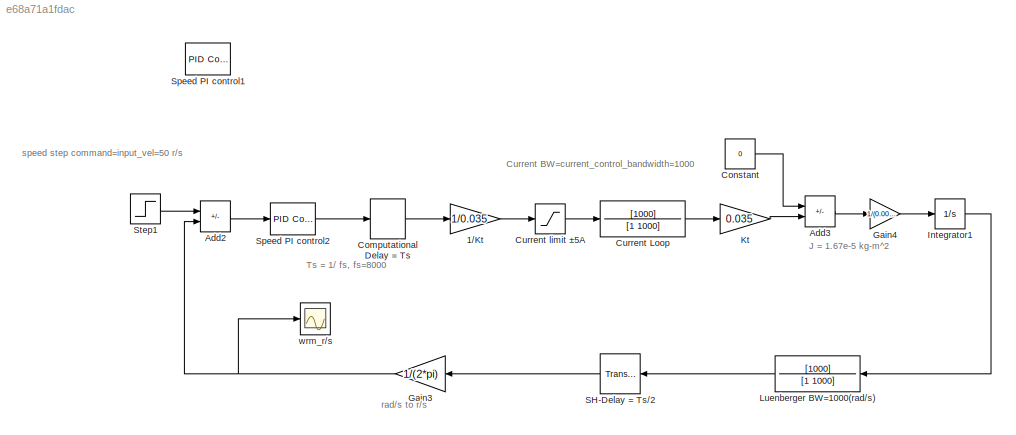
MODEL slx_e68a71a1fdac
KIND model
CONFIG AbsTol = auto
CONFIG EnableMultiTasking = off
CONFIG FixedStep = 1e-5
CONFIG MaxStep = auto
CONFIG MinStep = auto
CONFIG RelTol = 1e-3
CONFIG SampleTimeConstraint = Unconstrained
CONFIG SolverName = VariableStepAuto
CONFIG StartTime = 0.0
CONFIG StopTime = 5
BLOCK [Gain] 1//Kt
  Gain = 1/0.035
BLOCK [Sum] Add2
  IconShape = rectangular
  Inputs = +-
BLOCK [Sum] Add3
  IconShape = rectangular
  Inputs = -+
BLOCK [TransportDelay] Computational Delay = Ts
  DelayTime = 1/8000
BLOCK [Constant] Constant
  Value = 0
BLOCK [TransferFcn] Current Loop
  Denominator = [1 1000]
  Numerator = [1000]
BLOCK [Saturate] Current limit ±5A
  LowerLimit = -5
  UpperLimit = 5
BLOCK [Gain] Gain3
  Gain = 1/(2*pi)
  NameLocation = top
BLOCK [Gain] Gain4
  Gain = 1/(0.0000167)
BLOCK [Integrator] Integrator1
BLOCK [Gain] Kt
  Gain = 0.035
BLOCK [TransferFcn] Luenberger BW=1000(rad//s)
  Denominator = [1 1000]
  NameLocation = top
  Numerator = [1000]
BLOCK [TransportDelay] SH-Delay = Ts//2
  DelayTime = (1/8000)/2
  NameLocation = top
BLOCK [Reference] Speed PI control1  REF=slpidlib/PID Controller
  LibrarySourceBlock = simulink/Continuous/PID Controller
  NameLocation = top
  SourceBlock = slpidlib/PID Controller
  SourceType = PID 1dof
BLOCK [Reference] Speed PI control2  REF=slpidlib/PID Controller
  LibrarySourceBlock = simulink/Continuous/PID Controller
  NameLocation = top
  SourceBlock = slpidlib/PID Controller
  SourceType = PID 1dof
BLOCK [Step] Step1
  After = 50
  SampleTime = 0
  Time = 1.5
BLOCK [Scope] wrm_r//s
  Floating = off
  NumInputPorts = 1
  ScopeSpecificationString = Simulink.scopes.TimeScopeBlockCfg('CurrentConfiguration', extmgr.ConfigurationSet(extmgr.Configuration('Core','General UI',true,'FigureColor',[1 1 1]),extmgr.Configuration('Core','Source UI',true),extmgr.Configuration('Sources','WiredSimulink',true,'DataLoggingVariableName','ScopeData1'),extmgr.Configuration('Visuals','Time Domain',true,'SerializedDisplays',{struct('MinYLimReal','-9.37197','MaxYLi...<+1561ch>
ANNOTATION (root): Current BW=current_control_bandwidth=1000
ANNOTATION (root): J = 1.67e-5 kg-m^2
ANNOTATION (root): Ts = 1/ fs, fs=8000
ANNOTATION (root): rad/s to r/s
ANNOTATION (root): speed step command=input_vel=50 r/s
LINE 1//Kt:1 -> Current limit ±5A:1
LINE Add2:1 -> Speed PI control2:1
LINE Add3:1 -> Gain4:1
LINE Computational Delay = Ts:1 -> 1//Kt:1
LINE Constant:1 -> Add3:1
LINE Current Loop:1 -> Kt:1
LINE Current limit ±5A:1 -> Current Loop:1
NET Gain3:1 -> Add2:2, wrm_r//s:1
LINE Gain4:1 -> Integrator1:1
LINE Integrator1:1 -> Luenberger BW=1000(rad//s):1
LINE Kt:1 -> Add3:2
LINE Luenberger BW=1000(rad//s):1 -> SH-Delay = Ts//2:1
LINE SH-Delay = Ts//2:1 -> Gain3:1
LINE Speed PI control2:1 -> Computational Delay = Ts:1
LINE Step1:1 -> Add2:1
note: NET lines group one-source signal fan-out (src -> all destinations, sorted); 1:1 wires keep LINE
